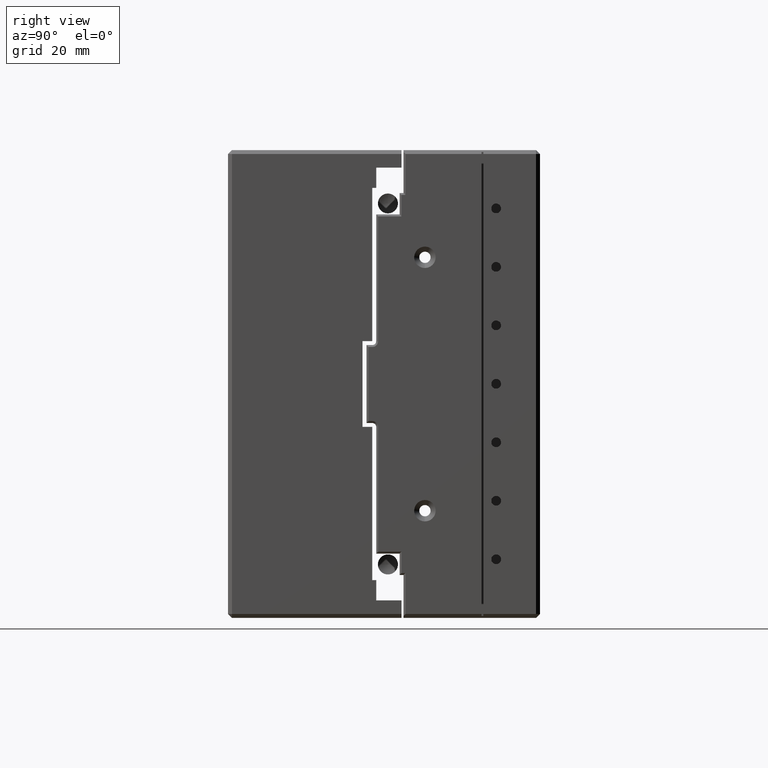
[diagram: clean part render]
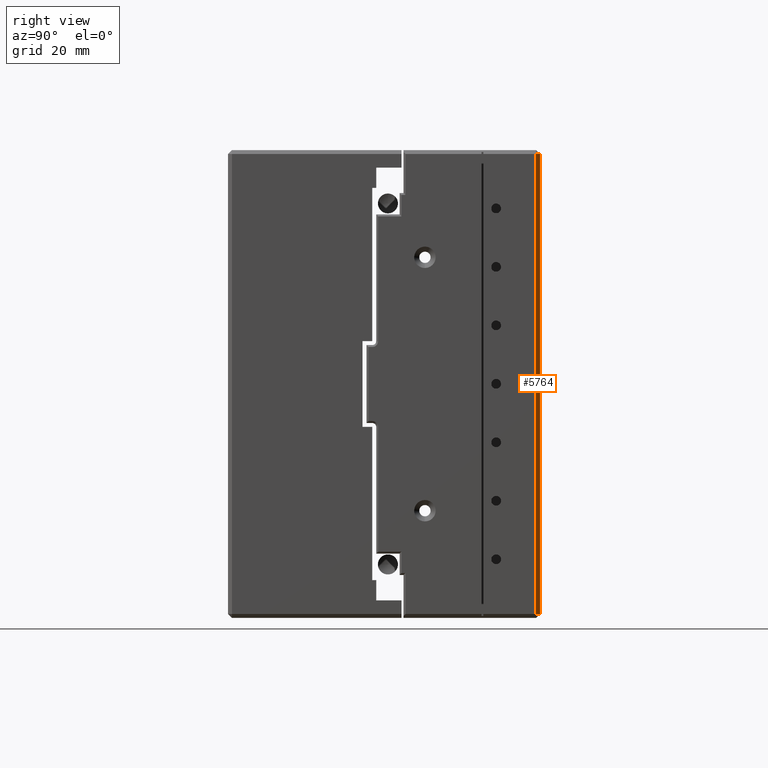
[diagram: same view with one face highlighted and labeled with its STEP entity id]
A machine part, right view. The second image highlights one B-rep face of the part: STEP entity #5764.
In plain terms, the highlighted planar face has unit normal (0.7071, 0.7071, -0).
Its self-contained STEP definition (entity closure, byte-faithful):
#247 = EDGE_CURVE ( 'NONE', #11134, #10800, #17384, .T. ) ;
#486 = EDGE_CURVE ( 'NONE', #15630, #7664, #2642, .T. ) ;
#790 = AXIS2_PLACEMENT_3D ( 'NONE', #3611, #1792, #8641 ) ;
#941 = CARTESIAN_POINT ( 'NONE',  ( 58.99999999999997900, 25.00000000000004300, -59.00000000000003600 ) ) ;
#1003 = DIRECTION ( 'NONE',  ( -3.330669073875468600E-016, 1.650805674533677300E-016, -1.000000000000000000 ) ) ;
#1162 = CARTESIAN_POINT ( 'NONE',  ( 59.00000000000001400, 25.00000000000002100, 58.99999999999995700 ) ) ;
#1163 = VECTOR ( 'NONE', #3570, 1000.000000000000000 ) ;
#1792 = DIRECTION ( 'NONE',  ( 0.7071067811865473500, 0.7071067811865476800, -1.187842801141665100E-016 ) ) ;
#1806 = DIRECTION ( 'NONE',  ( 0.7071067811865476800, -0.7071067811865474600, -3.522434574909659100E-016 ) ) ;
#1842 = ORIENTED_EDGE ( 'NONE', *, *, #247, .T. ) ;
#2642 = LINE ( 'NONE', #15173, #11685 ) ;
#2669 = CARTESIAN_POINT ( 'NONE',  ( 60.00000000000002100, 24.00000000000002100, 58.99999999999995700 ) ) ;
#3570 = DIRECTION ( 'NONE',  ( 3.330669073875468600E-016, -1.650805674533677300E-016, 1.000000000000000000 ) ) ;
#3611 = CARTESIAN_POINT ( 'NONE',  ( 59.99999999999997900, 24.00000000000004300, -60.00000000000004300 ) ) ;
#5437 = ORIENTED_EDGE ( 'NONE', *, *, #486, .F. ) ;
#5764 = ADVANCED_FACE ( 'NONE', ( #6219 ), #18437, .T. ) ;
#6219 = FACE_OUTER_BOUND ( 'NONE', #10076, .T. ) ;
#7664 = VERTEX_POINT ( 'NONE', #10386 ) ;
#7935 = ORIENTED_EDGE ( 'NONE', *, *, #15383, .F. ) ;
#8641 = DIRECTION ( 'NONE',  ( -3.330669073875468600E-016, 1.650805674533677300E-016, -1.000000000000000000 ) ) ;
#9392 = DIRECTION ( 'NONE',  ( 0.7071067811865476800, -0.7071067811865474600, -3.522434574909659100E-016 ) ) ;
#9792 = LINE ( 'NONE', #14014, #11558 ) ;
#10076 = EDGE_LOOP ( 'NONE', ( #1842, #7935, #5437, #21393 ) ) ;
#10367 = CARTESIAN_POINT ( 'NONE',  ( 59.00000000000001400, 25.00000000000002100, 58.99999999999995700 ) ) ;
#10386 = CARTESIAN_POINT ( 'NONE',  ( 59.99999999999997900, 24.00000000000004300, -59.00000000000003600 ) ) ;
#10800 = VERTEX_POINT ( 'NONE', #2669 ) ;
#11134 = VERTEX_POINT ( 'NONE', #10367 ) ;
#11558 = VECTOR ( 'NONE', #1003, 1000.000000000000000 ) ;
#11685 = VECTOR ( 'NONE', #1806, 1000.000000000000000 ) ;
#14014 = CARTESIAN_POINT ( 'NONE',  ( 58.99999999999997900, 25.00000000000004300, -60.00000000000004300 ) ) ;
#15173 = CARTESIAN_POINT ( 'NONE',  ( 59.99999999999997900, 24.00000000000004300, -59.00000000000003600 ) ) ;
#15383 = EDGE_CURVE ( 'NONE', #7664, #10800, #17735, .T. ) ;
#15630 = VERTEX_POINT ( 'NONE', #941 ) ;
#15798 = VECTOR ( 'NONE', #9392, 1000.000000000000000 ) ;
#16920 = CARTESIAN_POINT ( 'NONE',  ( 60.00000000000002100, 24.00000000000002100, 59.99999999999995700 ) ) ;
#17109 = EDGE_CURVE ( 'NONE', #11134, #15630, #9792, .T. ) ;
#17384 = LINE ( 'NONE', #1162, #15798 ) ;
#17735 = LINE ( 'NONE', #16920, #1163 ) ;
#18437 = PLANE ( 'NONE',  #790 ) ;
#21393 = ORIENTED_EDGE ( 'NONE', *, *, #17109, .F. ) ;